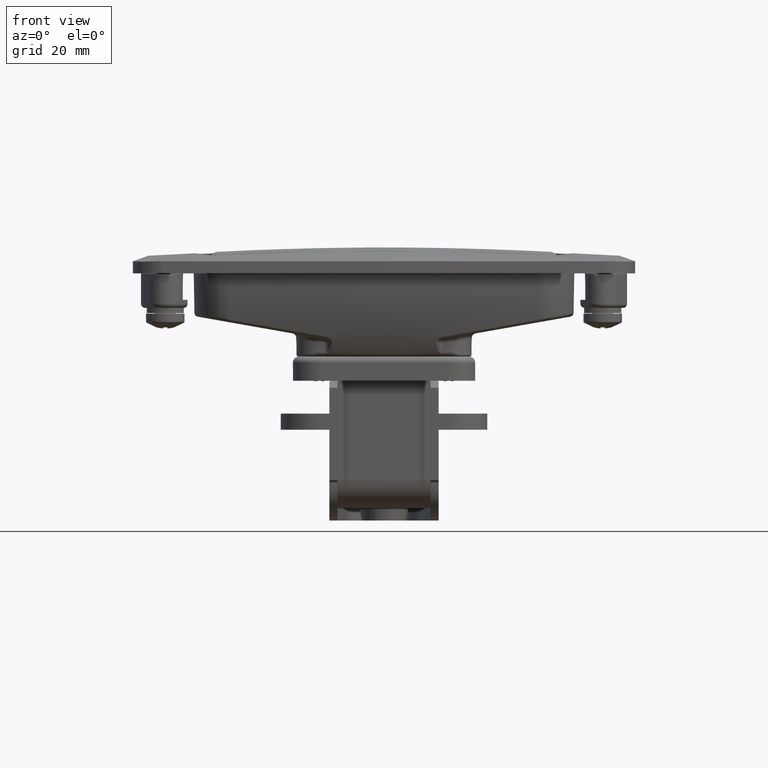
[diagram: clean part render]
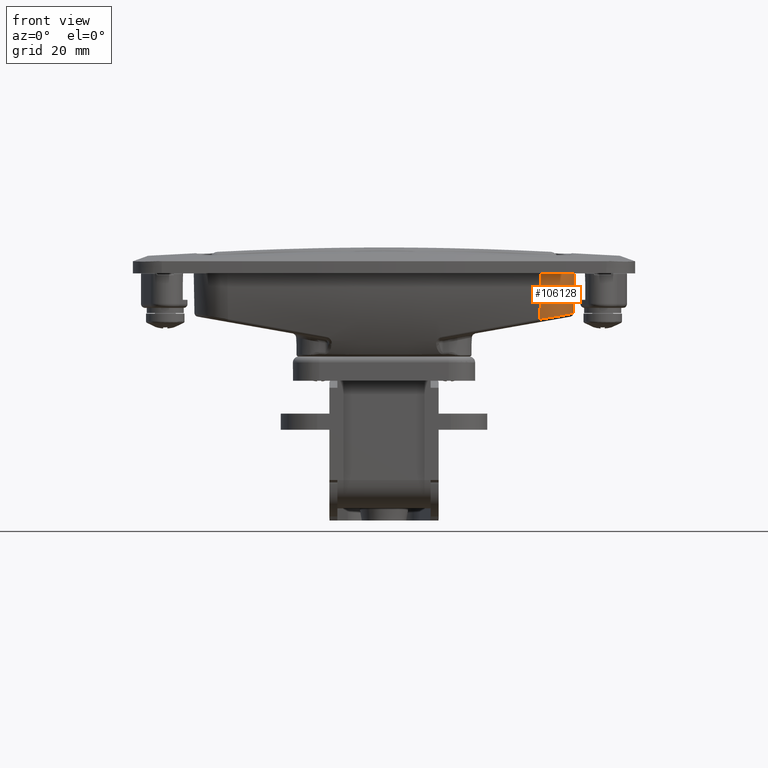
[diagram: same view with one face highlighted and labeled with its STEP entity id]
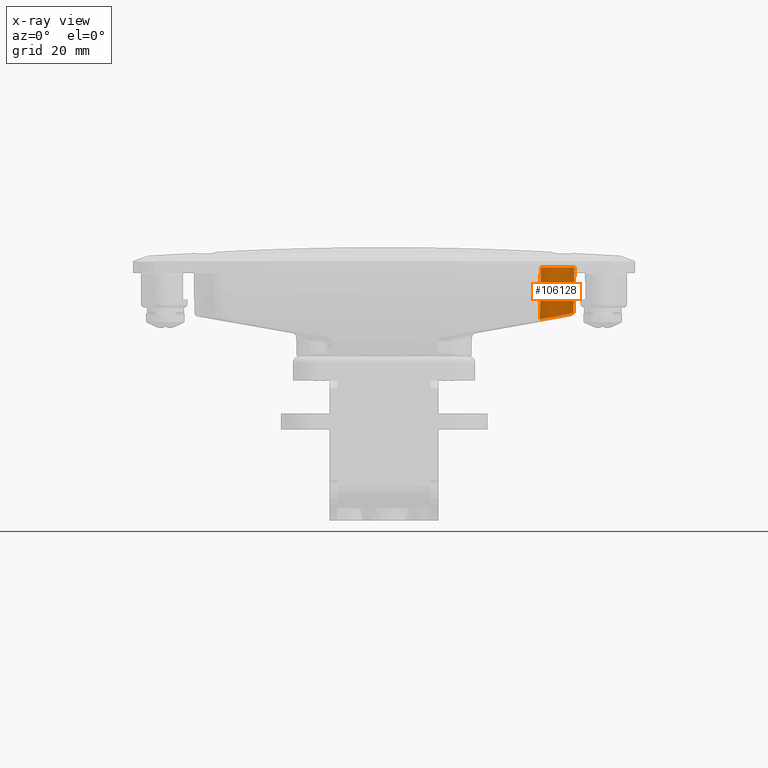
[diagram: x-ray of the same camera — body ghosted, the highlighted face saturated]
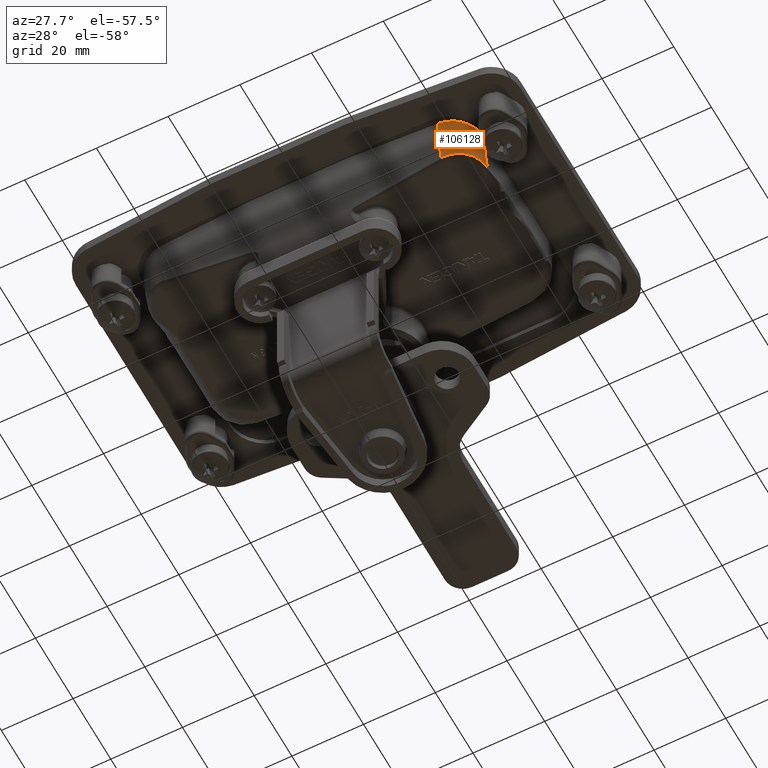
[diagram: same view with one face highlighted and labeled with its STEP entity id]
A machine part, front view. The second image highlights one B-rep face of the part: STEP entity #106128.
The next image is the same camera in x-ray: the body ghosted, the highlighted face saturated — about 0% of this face is hidden behind the body in this view.
A second angle (auxiliary view) of the same face is appended — the face is thin or edge-on in the first view.
In plain terms, the highlighted face is a freeform B-spline surface patch.
Its self-contained STEP definition (entity closure, byte-faithful):
#952 = CARTESIAN_POINT ( 'NONE',  ( 46.80427920603724300, -19.53849329007858100, -16.21283677646810200 ) ) ;
#1124 = CARTESIAN_POINT ( 'NONE',  ( 46.80427920603724300, -19.53849329007858100, -16.21283677646810200 ) ) ;
#1125 = CARTESIAN_POINT ( 'NONE',  ( 46.83577448728137700, -20.15245770582349700, -14.40847332244135800 ) ) ;
#1126 = CARTESIAN_POINT ( 'NONE',  ( 46.86790790940372600, -20.62369326632786900, -12.56755080198806600 ) ) ;
#1127 = CARTESIAN_POINT ( 'NONE',  ( 46.91706544825221700, -21.11640985572202200, -9.751317287494842400 ) ) ;
#1128 = CARTESIAN_POINT ( 'NONE',  ( 46.93360472675657700, -21.24452703973435800, -8.803782656580065000 ) ) ;
#1129 = CARTESIAN_POINT ( 'NONE',  ( 46.96672119149018000, -21.42644999896337400, -6.906541662644882800 ) ) ;
#1130 = CARTESIAN_POINT ( 'NONE',  ( 46.98333342817916500, -21.48065035501379300, -5.954827260132368800 ) ) ;
#1131 = CARTESIAN_POINT ( 'NONE',  ( 47.00000000000000000, -21.49786440300175600, -5.000000000000001800 ) ) ;
#1134 = B_SPLINE_CURVE_WITH_KNOTS ( 'NONE', 3,
 ( #1131, #1130, #1129, #1128, #1127, #1126, #1125, #1124 ),
 .UNSPECIFIED., .F., .F.,
 ( 4, 2, 2, 4 ),
 ( 6.071532165918825600E-018, 0.002859153762661309700, 0.005718307525322613300, 0.01143661505064522000 ),
 .UNSPECIFIED. ) ;
#36637 = CARTESIAN_POINT ( 'NONE',  ( 38.71252860935775400, -30.46836144080994300, -5.000000000000004400 ) ) ;
#36638 = CARTESIAN_POINT ( 'NONE',  ( 38.69670877486108700, -30.44894715861305200, -6.085526631943805500 ) ) ;
#36639 = CARTESIAN_POINT ( 'NONE',  ( 38.68038871578105600, -30.39111565488466100, -7.167812527068107000 ) ) ;
#36640 = CARTESIAN_POINT ( 'NONE',  ( 38.64675647886353000, -30.19910690925228600, -9.325944099561089800 ) ) ;
#36641 = CARTESIAN_POINT ( 'NONE',  ( 38.62942380914731900, -30.06472467854427000, -10.40301739346947800 ) ) ;
#36642 = CARTESIAN_POINT ( 'NONE',  ( 38.57606233431658900, -29.54744841967365300, -13.61619124800159100 ) ) ;
#36643 = CARTESIAN_POINT ( 'NONE',  ( 38.53887640690266600, -29.05324697571395000, -15.72272506682025500 ) ) ;
#36644 = CARTESIAN_POINT ( 'NONE',  ( 38.50006349494729100, -28.40990928892998100, -17.79372755901094600 ) ) ;
#36646 = B_SPLINE_CURVE_WITH_KNOTS ( 'NONE', 3,
 ( #36644, #36643, #36642, #36641, #36640, #36639, #36638, #36637 ),
 .UNSPECIFIED., .F., .F.,
 ( 4, 2, 2, 4 ),
 ( 0.0007406302491199893300, 0.007232738792700258600, 0.01047879306449039600, 0.01372484733628053300 ),
 .UNSPECIFIED. ) ;
#36651 = CARTESIAN_POINT ( 'NONE',  ( 38.50006349494729100, -28.40990928892998100, -17.79372755901094600 ) ) ;
#38439 = CARTESIAN_POINT ( 'NONE',  ( 41.29610914648736800, -28.96380937059325300, -13.17287625874337400 ) ) ;
#38440 = CARTESIAN_POINT ( 'NONE',  ( 40.77038661418898600, -29.15777975607797500, -13.20279279635581900 ) ) ;
#38441 = CARTESIAN_POINT ( 'NONE',  ( 40.23105644602041800, -29.30240046829325000, -13.22252544599317600 ) ) ;
#38442 = CARTESIAN_POINT ( 'NONE',  ( 39.69172627785184900, -29.44702118050852500, -13.24225809563053100 ) ) ;
#38443 = CARTESIAN_POINT ( 'NONE',  ( 39.13881006633188500, -29.54228642945342300, -13.25180606724402600 ) ) ;
#38444 = FACE_OUTER_BOUND ( 'NONE', #106129, .T. ) ;
#39086 = CARTESIAN_POINT ( 'NONE',  ( 45.20180084106983300, -25.93277783256353800, -12.63016204492076800 ) ) ;
#39087 = CARTESIAN_POINT ( 'NONE',  ( 44.85990023063207800, -26.37022807166687200, -12.71236039361271300 ) ) ;
#39088 = CARTESIAN_POINT ( 'NONE',  ( 44.47976324972653100, -26.77299803343673200, -12.78690153154691200 ) ) ;
#39089 = CARTESIAN_POINT ( 'NONE',  ( 44.09962626882098400, -27.17576799520659100, -12.86144266948111300 ) ) ;
#39090 = CARTESIAN_POINT ( 'NONE',  ( 43.68126813653981300, -27.54384155444011000, -12.92832361224224200 ) ) ;
#39091 = CARTESIAN_POINT ( 'NONE',  ( 43.23190670927115800, -27.87086840896539300, -12.98639045544759300 ) ) ;
#39092 = CARTESIAN_POINT ( 'NONE',  ( 42.78254528200249500, -28.19789526349067500, -13.04445729865294500 ) ) ;
#39093 = CARTESIAN_POINT ( 'NONE',  ( 42.30219855029474700, -28.48386232053787000, -13.09370771746780600 ) ) ;
#39094 = CARTESIAN_POINT ( 'NONE',  ( 41.79915384839105700, -28.72383584556556000, -13.13329198810559000 ) ) ;
#39119 = B_SPLINE_SURFACE_WITH_KNOTS ( 'NONE', 3, 3, ( 
 ( #39166, #39165, #39164, #39163, #39162, #39161, #39160, #39159, #39158, #39157, #39156, #39155, #39154, #39153, #39152, #39151, #39150, #39149, #39148, #39147, #39146, #39145, #39144, #39143, #39142 ),
 ( #39141, #39140, #39139, #39138, #39137, #39136, #39135, #39134, #39133, #39132, #39131, #39130, #39129, #39218, #39217, #39216, #39215, #39214, #39213, #39212, #39211, #39210, #39209, #39208, #39207 ),
 ( #39206, #39205, #39204, #39203, #39202, #39201, #39200, #39199, #39198, #39197, #39196, #39195, #39194, #39193, #39192, #39191, #39190, #39189, #39188, #39187, #39186, #39185, #39184, #39183, #39182 ),
 ( #39181, #39180, #39179, #39178, #39177, #39176, #39175, #39174, #39173, #39172, #39171, #39266, #39265, #39264, #39263, #39262, #39261, #39260, #39259, #39258, #39257, #39256, #39255, #39254, #39253 ),
 ( #39252, #39251, #39250, #39249, #39248, #39247, #39246, #39245, #39244, #39243, #39242, #39241, #39240, #39239, #39238, #39237, #39236, #39235, #39234, #39233, #39232, #39231, #39230, #39229, #39228 ),
 ( #39227, #39226, #39225, #39224, #39223, #39222, #39221, #39220, #39219, #39315, #39314, #39313, #39312, #39311, #39310, #39309, #39308, #39307, #39306, #39305, #39304, #39303, #39302, #39301, #39300 ),
 ( #39299, #39298, #39297, #39296, #39295, #39294, #39293, #39292, #39291, #39290, #39289, #39288, #39287, #39286, #39285, #39284, #39283, #39282, #39281, #39280, #39279, #39278, #39277, #39276, #39275 ),
 ( #39274, #39273, #39272, #39271, #39270, #39269, #39267, #39364, #39363, #39362, #39361, #39360, #39359, #39358, #39357, #39356, #39355, #39354, #39353, #39352, #39351, #39350, #39349, #39348, #39347 ),
 ( #39346, #39345, #39344, #39343, #39342, #39341, #39340, #39339, #39338, #39337, #39336, #39335, #39334, #39333, #39332, #39331, #39330, #39328, #39327, #39326, #39325, #39324, #39323, #39322, #39321 ),
 ( #39320, #39319, #39318, #39317, #39316, #39411, #39410, #39409, #39408, #39407, #39406, #39405, #39404, #39403, #39402, #39401, #39400, #39399, #39398, #39397, #39396, #39395, #39394, #39393, #39392 ),
 ( #39391, #39390, #39389, #39388, #39387, #39386, #39385, #39384, #39383, #39382, #39381, #39380, #39379, #39378, #39377, #39376, #39375, #39374, #39373, #39372, #39371, #39370, #39369, #39368, #39367 ),
 ( #39366, #39365, #39460, #39459, #39458, #39457, #39456, #39455, #39454, #39453, #39452, #39451, #39450, #39449, #39448, #39447, #39446, #39445, #39444, #39443, #39442, #39441, #39440, #39439, #39438 ),
 ( #39437, #39436, #39435, #39434, #39433, #39432, #39431, #39430, #39429, #39428, #39427, #39426, #39425, #39424, #39423, #39422, #39421, #39420, #39419, #39418, #39417, #39416, #39415, #39414, #39413 ),
 ( #39412, #38443, #38442, #38441, #38440, #38439, #39094, #39093, #39092, #39091, #39090, #39089, #39088, #39087, #39086, #39508, #39507, #39506, #39505, #39504, #39503, #39502, #39501, #39500, #39499 ),
 ( #39498, #39497, #39496, #39495, #39494, #39493, #39492, #39491, #39490, #39489, #39488, #39487, #39486, #39485, #39484, #39483, #39482, #39481, #39480, #39479, #39478, #39477, #39476, #39475, #39474 ),
 ( #39473, #39472, #39471, #39470, #39469, #39468, #39467, #39466, #39465, #39464, #39463, #39462, #39461, #39556, #39555, #39554, #39553, #39552, #39551, #39550, #39549, #39548, #39547, #39546, #39545 ),
 ( #39544, #39543, #39542, #39541, #39540, #39539, #39538, #39537, #39536, #39535, #39534, #39533, #39532, #39531, #39530, #39529, #39528, #39527, #39526, #39525, #39524, #39523, #39522, #39521, #39520 ),
 ( #39519, #39518, #39517, #39516, #39515, #39514, #39513, #39512, #39511, #39510, #39509, #39602, #39601, #39600, #39599, #39598, #39597, #39596, #39595, #39594, #39593, #39592, #39591, #39590, #39589 ),
 ( #39588, #39587, #39586, #39585, #39584, #39583, #39582, #39581, #39580, #39579, #39578, #39577, #39576, #39575, #39574, #39573, #39572, #39571, #39570, #39569, #39568, #39567, #39566, #39565, #39564 ) ),
 .UNSPECIFIED., .F., .F., .F.,
 ( 4, 3, 3, 3, 3, 3, 4 ),
 ( 4, 3, 3, 3, 3, 3, 3, 3, 4 ),
 ( 0.01982776705656933600, 0.02271980293831549500, 0.02416582087918857400, 0.02488882984962511500, 0.02561183882006165500, 0.02850387470180781500, 0.03139591058355397500 ),
 ( 0.0000000000000000000, 0.1250000000000000000, 0.2500000000000000000, 0.3750000000000000000, 0.5000000000000000000, 0.6250000000000000000, 0.7500000000000000000, 0.8750000000000000000, 1.000000000000000000 ),
 .UNSPECIFIED. ) ;
#39129 = CARTESIAN_POINT ( 'NONE',  ( 44.59399504436684900, -27.58819630303151600, -6.042895424150334100 ) ) ;
#39130 = CARTESIAN_POINT ( 'NONE',  ( 44.21445796160738700, -27.99881799745543600, -6.052990495590466800 ) ) ;
#39131 = CARTESIAN_POINT ( 'NONE',  ( 43.79656417740940800, -28.37399904313321700, -6.060972347964416000 ) ) ;
#39132 = CARTESIAN_POINT ( 'NONE',  ( 43.34753453485404200, -28.70725663733323800, -6.066702973279174000 ) ) ;
#39133 = CARTESIAN_POINT ( 'NONE',  ( 42.89850489229867500, -29.04051423153326200, -6.072433598593931100 ) ) ;
#39134 = CARTESIAN_POINT ( 'NONE',  ( 42.41835742377351400, -29.33183499111054700, -6.075912766348618100 ) ) ;
#39135 = CARTESIAN_POINT ( 'NONE',  ( 41.91538866174421700, -29.57618514574795300, -6.077080290822897800 ) ) ;
#39136 = CARTESIAN_POINT ( 'NONE',  ( 41.41241989971492600, -29.82053530038535900, -6.078247815297178400 ) ) ;
#39137 = CARTESIAN_POINT ( 'NONE',  ( 40.88665004268524700, -30.01790503732981500, -6.077103649335724000 ) ) ;
#39138 = CARTESIAN_POINT ( 'NONE',  ( 40.34716393819405100, -30.16488397781551700, -6.073667516584787800 ) ) ;
#39139 = CARTESIAN_POINT ( 'NONE',  ( 39.80767783370284700, -30.31186291830122000, -6.070231383833850600 ) ) ;
#39140 = CARTESIAN_POINT ( 'NONE',  ( 39.25449714673687400, -30.40844515985988400, -6.064503422121686200 ) ) ;
#39141 = CARTESIAN_POINT ( 'NONE',  ( 38.69718036004272900, -30.45296184359554200, -6.056582582893640600 ) ) ;
#39142 = CARTESIAN_POINT ( 'NONE',  ( 47.00223722259141800, -21.49995230894228700, -4.871829603578167000 ) ) ;
#39143 = CARTESIAN_POINT ( 'NONE',  ( 47.00209521870409200, -22.05918645700340600, -4.879965000834572700 ) ) ;
#39144 = CARTESIAN_POINT ( 'NONE',  ( 46.94967586342726700, -22.61840936426672100, -4.887187729954112200 ) ) ;
#39145 = CARTESIAN_POINT ( 'NONE',  ( 46.84588539048164800, -23.16795310076109300, -4.893372923306317900 ) ) ;
#39146 = CARTESIAN_POINT ( 'NONE',  ( 46.74209491753603600, -23.71749683725546400, -4.899558116658523600 ) ) ;
#39147 = CARTESIAN_POINT ( 'NONE',  ( 46.58693749936966800, -24.25733931094654800, -4.904705525594392800 ) ) ;
#39148 = CARTESIAN_POINT ( 'NONE',  ( 46.38309552083102700, -24.77814764372187300, -4.908726160931832900 ) ) ;
#39149 = CARTESIAN_POINT ( 'NONE',  ( 46.17925354229239300, -25.29895597649719400, -4.912746796269272100 ) ) ;
#39150 = CARTESIAN_POINT ( 'NONE',  ( 45.92673519796850500, -25.80070923150539700, -4.915640496375989900 ) ) ;
#39151 = CARTESIAN_POINT ( 'NONE',  ( 45.62990606308471800, -26.27473302279179300, -4.917357234528068100 ) ) ;
#39152 = CARTESIAN_POINT ( 'NONE',  ( 45.33307692820092400, -26.74875681407819200, -4.919073972680146200 ) ) ;
#39153 = CARTESIAN_POINT ( 'NONE',  ( 44.99194893549157100, -27.19503208556204800, -4.919613679863531700 ) ) ;
#39154 = CARTESIAN_POINT ( 'NONE',  ( 44.61241955714875500, -27.60584356303580500, -4.918967025539041400 ) ) ;
#39155 = CARTESIAN_POINT ( 'NONE',  ( 44.23289017880594500, -28.01665504050955800, -4.918320371214551100 ) ) ;
#39156 = CARTESIAN_POINT ( 'NONE',  ( 43.81497467217038600, -28.39198620907073000, -4.916487381378129100 ) ) ;
#39157 = CARTESIAN_POINT ( 'NONE',  ( 43.36589802355721400, -28.72534828686409400, -4.913499745034541500 ) ) ;
#39158 = CARTESIAN_POINT ( 'NONE',  ( 42.91682137494403500, -29.05871036465745400, -4.910512108690954700 ) ) ;
#39159 = CARTESIAN_POINT ( 'NONE',  ( 42.43660163754179100, -29.35008995029934900, -4.906369945945224100 ) ) ;
#39160 = CARTESIAN_POINT ( 'NONE',  ( 41.93354092260482000, -29.59444962956284500, -4.901144867131693100 ) ) ;
#39161 = CARTESIAN_POINT ( 'NONE',  ( 41.43048020766784100, -29.83880930882634200, -4.895919788318162900 ) ) ;
#39162 = CARTESIAN_POINT ( 'NONE',  ( 40.90459873858107900, -30.03613925828513600, -4.889612003488570800 ) ) ;
#39163 = CARTESIAN_POINT ( 'NONE',  ( 40.36498803350360700, -30.18302800800866200, -4.882330562578489200 ) ) ;
#39164 = CARTESIAN_POINT ( 'NONE',  ( 39.82537732842613600, -30.32991675773219200, -4.875049121668406600 ) ) ;
#39165 = CARTESIAN_POINT ( 'NONE',  ( 39.27205908007754000, -30.42635840269220200, -4.866794317396739600 ) ) ;
#39166 = CARTESIAN_POINT ( 'NONE',  ( 38.71459913779520400, -30.47068564518382100, -4.857708860064854600 ) ) ;
#39171 = CARTESIAN_POINT ( 'NONE',  ( 43.75880612948424900, -28.20348429166300300, -8.352279989710808600 ) ) ;
#39172 = CARTESIAN_POINT ( 'NONE',  ( 43.30975618211550700, -28.53548918541772000, -8.375471673087673700 ) ) ;
#39173 = CARTESIAN_POINT ( 'NONE',  ( 42.86070623474677200, -28.86749407917243800, -8.398663356464537000 ) ) ;
#39174 = CARTESIAN_POINT ( 'NONE',  ( 42.38058547216761000, -29.15776592696758500, -8.417412238028452600 ) ) ;
#39175 = CARTESIAN_POINT ( 'NONE',  ( 41.87768378622874400, -29.40129281844001600, -8.431394594640158500 ) ) ;
#39176 = CARTESIAN_POINT ( 'NONE',  ( 41.37478210028987000, -29.64481970991244700, -8.445376951251864400 ) ) ;
#39177 = CARTESIAN_POINT ( 'NONE',  ( 40.84911965660245400, -29.84159187999528100, -8.454592222239616800 ) ) ;
#39178 = CARTESIAN_POINT ( 'NONE',  ( 40.30977268170740000, -29.98821180844703300, -8.458881294301470200 ) ) ;
#39179 = CARTESIAN_POINT ( 'NONE',  ( 39.77042570681234000, -30.13483173689878200, -8.463170366363323500 ) ) ;
#39180 = CARTESIAN_POINT ( 'NONE',  ( 39.21741582772277500, -30.23129354447794600, -8.462533067513859900 ) ) ;
#39181 = CARTESIAN_POINT ( 'NONE',  ( 38.66029145901968900, -30.27593169614649700, -8.456980401523274800 ) ) ;
#39182 = CARTESIAN_POINT ( 'NONE',  ( 46.96856065224145000, -21.43410493777382400, -6.801159026783300200 ) ) ;
#39183 = CARTESIAN_POINT ( 'NONE',  ( 46.96790834231647700, -21.99207567229047200, -6.838529837356516000 ) ) ;
#39184 = CARTESIAN_POINT ( 'NONE',  ( 46.91502843701160000, -22.55003521268046300, -6.874988261700528900 ) ) ;
#39185 = CARTESIAN_POINT ( 'NONE',  ( 46.81083427048853500, -23.09834658367878300, -6.909904514602378500 ) ) ;
#39186 = CARTESIAN_POINT ( 'NONE',  ( 46.70664010396547600, -23.64665795467709900, -6.944820767504228200 ) ) ;
#39187 = CARTESIAN_POINT ( 'NONE',  ( 46.55113585696766900, -24.18529915560672100, -6.978193447593717700 ) ) ;
#39188 = CARTESIAN_POINT ( 'NONE',  ( 46.34700737380266800, -24.70496687399854700, -7.009446068926110700 ) ) ;
#39189 = CARTESIAN_POINT ( 'NONE',  ( 46.14287889063767500, -25.22463459239037000, -7.040698690258502700 ) ) ;
#39190 = CARTESIAN_POINT ( 'NONE',  ( 45.89013436186127800, -25.72530797687715100, -7.069829998484411100 ) ) ;
#39191 = CARTESIAN_POINT ( 'NONE',  ( 45.59313914932094700, -26.19833948811345100, -7.096336769451514900 ) ) ;
#39192 = CARTESIAN_POINT ( 'NONE',  ( 45.29614393678062400, -26.67137099934974700, -7.122843540418617900 ) ) ;
#39193 = CARTESIAN_POINT ( 'NONE',  ( 44.95490995726106600, -27.11674165721880700, -7.146724710234053600 ) ) ;
#39194 = CARTESIAN_POINT ( 'NONE',  ( 44.57533094725397400, -27.52675910087349500, -7.167567742311422100 ) ) ;
#39195 = CARTESIAN_POINT ( 'NONE',  ( 44.19575193724688200, -27.93677654452818300, -7.188410774388790600 ) ) ;
#39196 = CARTESIAN_POINT ( 'NONE',  ( 43.77784312716846000, -28.31142432225430000, -7.206214832132697100 ) ) ;
#39197 = CARTESIAN_POINT ( 'NONE',  ( 43.32882256802270900, -28.64423158575725000, -7.220672352121539500 ) ) ;
#39198 = CARTESIAN_POINT ( 'NONE',  ( 42.87980200887695800, -28.97703884926020000, -7.235129872110381800 ) ) ;
#39199 = CARTESIAN_POINT ( 'NONE',  ( 42.39968771738562500, -29.26799224483907800, -7.246240274016676300 ) ) ;
#39200 = CARTESIAN_POINT ( 'NONE',  ( 41.89677214691500500, -29.51206647815259700, -7.253811618316462700 ) ) ;
#39201 = CARTESIAN_POINT ( 'NONE',  ( 41.39385657644439200, -29.75614071146611600, -7.261382962616249200 ) ) ;
#39202 = CARTESIAN_POINT ( 'NONE',  ( 40.86815990622494600, -29.95332598917433800, -7.265414945346675400 ) ) ;
#39203 = CARTESIAN_POINT ( 'NONE',  ( 40.32876188057890200, -30.10021656260977700, -7.265837897919994700 ) ) ;
#39204 = CARTESIAN_POINT ( 'NONE',  ( 39.78936385493285100, -30.24710713604521600, -7.266260850493313100 ) ) ;
#39205 = CARTESIAN_POINT ( 'NONE',  ( 39.23628611692958400, -30.34369711130554100, -7.263074755838351500 ) ) ;
#39206 = CARTESIAN_POINT ( 'NONE',  ( 38.67908133190379500, -30.38831820328949000, -7.256334629455022200 ) ) ;
#39207 = CARTESIAN_POINT ( 'NONE',  ( 46.98540510322424500, -21.48591981975507200, -5.836141076288279300 ) ) ;
#39208 = CARTESIAN_POINT ( 'NONE',  ( 46.98500796075057900, -22.04479465939157700, -5.858893353366239500 ) ) ;
#39209 = CARTESIAN_POINT ( 'NONE',  ( 46.93236095437496400, -22.60365827722759500, -5.880733148380761200 ) ) ;
#39210 = CARTESIAN_POINT ( 'NONE',  ( 46.82837378090097500, -23.15285399638374700, -5.901282956777514200 ) ) ;
#39211 = CARTESIAN_POINT ( 'NONE',  ( 46.72438660742698600, -23.70204971553990000, -5.921832765174265500 ) ) ;
#39212 = CARTESIAN_POINT ( 'NONE',  ( 46.56906344283935800, -24.24155548111448500, -5.941091761097359500 ) ) ;
#39213 = CARTESIAN_POINT ( 'NONE',  ( 46.36508813862295100, -24.76204910297450100, -5.958727038526509600 ) ) ;
#39214 = CARTESIAN_POINT ( 'NONE',  ( 46.16111283440654500, -25.28254272483451700, -5.976362315955659800 ) ) ;
#39215 = CARTESIAN_POINT ( 'NONE',  ( 45.90849358192406300, -25.78400330071220700, -5.992373166109960200 ) ) ;
#39216 = CARTESIAN_POINT ( 'NONE',  ( 45.61159542435170500, -26.25776602806146400, -6.006482817084930500 ) ) ;
#39217 = CARTESIAN_POINT ( 'NONE',  ( 45.31469726677934800, -26.73152875541072100, -6.020592468059900800 ) ) ;
#39218 = CARTESIAN_POINT ( 'NONE',  ( 44.97353212712630500, -27.17757460860759300, -6.032800352710201400 ) ) ;
#39219 = CARTESIAN_POINT ( 'NONE',  ( 42.84151210487851800, -28.74641854961774700, -9.562406409426433400 ) ) ;
#39220 = CARTESIAN_POINT ( 'NONE',  ( 42.36137494601906200, -29.03593021876652400, -9.588795582768568700 ) ) ;
#39221 = CARTESIAN_POINT ( 'NONE',  ( 41.85847730494688800, -29.27884184357398900, -9.609190749853524900 ) ) ;
#39222 = CARTESIAN_POINT ( 'NONE',  ( 41.35557966387470700, -29.52175346838145100, -9.629585916938481200 ) ) ;
#39223 = CARTESIAN_POINT ( 'NONE',  ( 40.82994169399740500, -29.71805531427197900, -9.643986260410127200 ) ) ;
#39224 = CARTESIAN_POINT ( 'NONE',  ( 40.29063650100187700, -29.86435899004751700, -9.652143209107270700 ) ) ;
#39225 = CARTESIAN_POINT ( 'NONE',  ( 39.75133130800635000, -30.01066266582305200, -9.660300157804412500 ) ) ;
#39226 = CARTESIAN_POINT ( 'NONE',  ( 39.19838050431706500, -30.10696230842850700, -9.662213384823605400 ) ) ;
#39227 = CARTESIAN_POINT ( 'NONE',  ( 38.64132864597846200, -30.15159567740261100, -9.657849863266847000 ) ) ;
#39228 = CARTESIAN_POINT ( 'NONE',  ( 46.94327515398379800, -21.29871523050293200, -8.249764251778691100 ) ) ;
#39229 = CARTESIAN_POINT ( 'NONE',  ( 46.94223989200354900, -21.85449899432864000, -8.309074370904793800 ) ) ;
#39230 = CARTESIAN_POINT ( 'NONE',  ( 46.88900250110806700, -22.41027161871612000, -8.367472109332871000 ) ) ;
#39231 = CARTESIAN_POINT ( 'NONE',  ( 46.78448204426703000, -22.95643853605724500, -8.423949298508880200 ) ) ;
#39232 = CARTESIAN_POINT ( 'NONE',  ( 46.67996158742599300, -23.50260545339837400, -8.480426487684889400 ) ) ;
#39233 = CARTESIAN_POINT ( 'NONE',  ( 46.52416225439859000, -24.03914477031288400, -8.534980863597521500 ) ) ;
#39234 = CARTESIAN_POINT ( 'NONE',  ( 46.31977368414288800, -24.55679395293443800, -8.586670608208063300 ) ) ;
#39235 = CARTESIAN_POINT ( 'NONE',  ( 46.11538511388719300, -25.07444313555598800, -8.638360352818605000 ) ) ;
#39236 = CARTESIAN_POINT ( 'NONE',  ( 45.86241549942820200, -25.57318143365224500, -8.687183394027854900 ) ) ;
#39237 = CARTESIAN_POINT ( 'NONE',  ( 45.56523197687823800, -26.04439889033794100, -8.732296857962319700 ) ) ;
#39238 = CARTESIAN_POINT ( 'NONE',  ( 45.26804845432826600, -26.51561634702364100, -8.777410321896784500 ) ) ;
#39239 = CARTESIAN_POINT ( 'NONE',  ( 44.92666293644669700, -26.95929407330583100, -8.818812400078869000 ) ) ;
#39240 = CARTESIAN_POINT ( 'NONE',  ( 44.54696892546626700, -27.36777264915999900, -8.855788332297043700 ) ) ;
#39241 = CARTESIAN_POINT ( 'NONE',  ( 44.16727491448583700, -27.77625122501416400, -8.892764264515220100 ) ) ;
#39242 = CARTESIAN_POINT ( 'NONE',  ( 43.74928763064214400, -28.14951427636735200, -8.925312568499864000 ) ) ;
#39243 = CARTESIAN_POINT ( 'NONE',  ( 43.30022298916190200, -28.48111798524795200, -8.952871333570739100 ) ) ;
#39244 = CARTESIAN_POINT ( 'NONE',  ( 42.85115834768166800, -28.81272169412855200, -8.980430098641615900 ) ) ;
#39245 = CARTESIAN_POINT ( 'NONE',  ( 42.37103434955859900, -29.10265276803183800, -9.002998220034339000 ) ) ;
#39246 = CARTESIAN_POINT ( 'NONE',  ( 41.86813960588560200, -29.34590598858372700, -9.020186082802006000 ) ) ;
#39247 = CARTESIAN_POINT ( 'NONE',  ( 41.36524486221260600, -29.58915920913561600, -9.037373945569672900 ) ) ;
#39248 = CARTESIAN_POINT ( 'NONE',  ( 40.83959953179121500, -29.78572482540575500, -9.049180860686085700 ) ) ;
#39249 = CARTESIAN_POINT ( 'NONE',  ( 40.30027808227165300, -29.93220943136566000, -9.055402992492206600 ) ) ;
#39250 = CARTESIAN_POINT ( 'NONE',  ( 39.76095663275208400, -30.07869403732556500, -9.061625124298329200 ) ) ;
#39251 = CARTESIAN_POINT ( 'NONE',  ( 39.20798068311937400, -30.17509176106414500, -9.062262223351613200 ) ) ;
#39252 = CARTESIAN_POINT ( 'NONE',  ( 38.65089652257763900, -30.21973844257500000, -9.057303287557399300 ) ) ;
#39253 = CARTESIAN_POINT ( 'NONE',  ( 46.95170365340301500, -21.34384513292656400, -7.766895843446895300 ) ) ;
#39254 = CARTESIAN_POINT ( 'NONE',  ( 46.95079604210786100, -21.90035788698258300, -7.818892859722035700 ) ) ;
#39255 = CARTESIAN_POINT ( 'NONE',  ( 46.89767781307590900, -22.45685948337090200, -7.869977493455424500 ) ) ;
#39256 = CARTESIAN_POINT ( 'NONE',  ( 46.79326611967420000, -23.00374121859776000, -7.919267703873380500 ) ) ;
#39257 = CARTESIAN_POINT ( 'NONE',  ( 46.68885442627249200, -23.55062295382461800, -7.968557914291336500 ) ) ;
#39258 = CARTESIAN_POINT ( 'NONE',  ( 46.53315345525494700, -24.08786289874416300, -8.016051724929585700 ) ) ;
#39259 = CARTESIAN_POINT ( 'NONE',  ( 46.32885158069614600, -24.60618492662247200, -8.060929095114080000 ) ) ;
#39260 = CARTESIAN_POINT ( 'NONE',  ( 46.12454970613735100, -25.12450695450078100, -8.105806465298572400 ) ) ;
#39261 = CARTESIAN_POINT ( 'NONE',  ( 45.87165512023922500, -25.62389028139388000, -8.148065595513374500 ) ) ;
#39262 = CARTESIAN_POINT ( 'NONE',  ( 45.57453436769247200, -26.09571242292977900, -8.186976828458718100 ) ) ;
#39263 = CARTESIAN_POINT ( 'NONE',  ( 45.27741361514571800, -26.56753456446567400, -8.225888061404063500 ) ) ;
#39264 = CARTESIAN_POINT ( 'NONE',  ( 44.93607861005148900, -27.01177660127682500, -8.261449836797263300 ) ) ;
#39265 = CARTESIAN_POINT ( 'NONE',  ( 44.55642293272883600, -27.42076813306449900, -8.293048135635171300 ) ) ;
#39266 = CARTESIAN_POINT ( 'NONE',  ( 44.17676725540619000, -27.82975966485217300, -8.324646434473077500 ) ) ;
#39267 = CARTESIAN_POINT ( 'NONE',  ( 41.84380374225425900, -29.16045074491174600, -10.49303060192679000 ) ) ;
#39269 = CARTESIAN_POINT ( 'NONE',  ( 41.34088677121531000, -29.40274648357771500, -10.51823865840813700 ) ) ;
#39270 = CARTESIAN_POINT ( 'NONE',  ( 40.81524499311911600, -29.59856550433514100, -10.53653079028767600 ) ) ;
#39271 = CARTESIAN_POINT ( 'NONE',  ( 40.27595007484125500, -29.74452831012481400, -10.54759130580659300 ) ) ;
#39272 = CARTESIAN_POINT ( 'NONE',  ( 39.73665515656339400, -29.89049111591448900, -10.55865182132551200 ) ) ;
#39273 = CARTESIAN_POINT ( 'NONE',  ( 39.18372870291853600, -29.98659185928823200, -10.56248027738171300 ) ) ;
#39274 = CARTESIAN_POINT ( 'NONE',  ( 38.62671326702636800, -30.03117200788932100, -10.55901060084402400 ) ) ;
#39275 = CARTESIAN_POINT ( 'NONE',  ( 46.92640868339662300, -21.17943527589715200, -9.216043704564640400 ) ) ;
#39276 = CARTESIAN_POINT ( 'NONE',  ( 46.92511800547188700, -21.73334291371891800, -9.289986593350329600 ) ) ;
#39277 = CARTESIAN_POINT ( 'NONE',  ( 46.87163818218894600, -22.28723945519945800, -9.363017035478112100 ) ) ;
#39278 = CARTESIAN_POINT ( 'NONE',  ( 46.76689223371555200, -22.83156507670330300, -9.433874582300131100 ) ) ;
#39279 = CARTESIAN_POINT ( 'NONE',  ( 46.66214628524215900, -23.37589069820714400, -9.504732129122151800 ) ) ;
#39280 = CARTESIAN_POINT ( 'NONE',  ( 46.50613840829527800, -23.91062359096176600, -9.573413941683087500 ) ) ;
#39281 = CARTESIAN_POINT ( 'NONE',  ( 46.30156117753039500, -24.42653468100842300, -9.638734625300220000 ) ) ;
#39282 = CARTESIAN_POINT ( 'NONE',  ( 46.09698394676551200, -24.94244577105508000, -9.704055308917350700 ) ) ;
#39283 = CARTESIAN_POINT ( 'NONE',  ( 45.84384555870711600, -25.43951438806858800, -9.766012246473513500 ) ) ;
#39284 = CARTESIAN_POINT ( 'NONE',  ( 45.54651498511072600, -25.90916151420442400, -9.823536109399782400 ) ) ;
#39285 = CARTESIAN_POINT ( 'NONE',  ( 45.24918441151433500, -26.37880864034026400, -9.881059972326051300 ) ) ;
#39286 = CARTESIAN_POINT ( 'NONE',  ( 44.90767356512957800, -26.82101545887011400, -9.934148455890129600 ) ) ;
#39287 = CARTESIAN_POINT ( 'NONE',  ( 44.52787665763055000, -27.22814982393466800, -9.981885294143525700 ) ) ;
#39288 = CARTESIAN_POINT ( 'NONE',  ( 44.14807975013152200, -27.63528418899921800, -10.02962213239692000 ) ) ;
#39289 = CARTESIAN_POINT ( 'NONE',  ( 43.73001199833704100, -28.00732978848600800, -10.07200541273106400 ) ) ;
#39290 = CARTESIAN_POINT ( 'NONE',  ( 43.28088892658338000, -28.33786540462404700, -10.10830363268161100 ) ) ;
#39291 = CARTESIAN_POINT ( 'NONE',  ( 42.83176585482971900, -28.66840102076208700, -10.14460185263215700 ) ) ;
#39292 = CARTESIAN_POINT ( 'NONE',  ( 42.35160545753515700, -28.95741341041935600, -10.17481355788648200 ) ) ;
#39293 = CARTESIAN_POINT ( 'NONE',  ( 41.84869492981846400, -29.19991444446582600, -10.19841731790236700 ) ) ;
#39294 = CARTESIAN_POINT ( 'NONE',  ( 41.34578440210177100, -29.44241547851229500, -10.22202107791825100 ) ) ;
#39295 = CARTESIAN_POINT ( 'NONE',  ( 40.82014389341187400, -29.63839544098075500, -10.23901594699515800 ) ) ;
#39296 = CARTESIAN_POINT ( 'NONE',  ( 40.28084555022812900, -29.78447187009904700, -10.24910860690681800 ) ) ;
#39297 = CARTESIAN_POINT ( 'NONE',  ( 39.74154720704438400, -29.93054829921734200, -10.25920126681847800 ) ) ;
#39298 = CARTESIAN_POINT ( 'NONE',  ( 39.18861263671804100, -30.02671534233498800, -10.26239131319567700 ) ) ;
#39299 = CARTESIAN_POINT ( 'NONE',  ( 38.63158506001039400, -30.07131323106041500, -10.25862368831829800 ) ) ;
#39300 = CARTESIAN_POINT ( 'NONE',  ( 46.93484351397417200, -21.24396298626637900, -8.732812584414560300 ) ) ;
#39301 = CARTESIAN_POINT ( 'NONE',  ( 46.93368056773956500, -21.79887911886743600, -8.799437729574327300 ) ) ;
#39302 = CARTESIAN_POINT ( 'NONE',  ( 46.88032265687021300, -22.35378413245988200, -8.865150472811087900 ) ) ;
#39303 = CARTESIAN_POINT ( 'NONE',  ( 46.77569079947044600, -22.89909974102014400, -8.928816523913674500 ) ) ;
#39304 = CARTESIAN_POINT ( 'NONE',  ( 46.67105894207067300, -23.44441534958040700, -8.992482575016259400 ) ) ;
#39305 = CARTESIAN_POINT ( 'NONE',  ( 46.51515733121836100, -23.98011969982797000, -9.054099382530965900 ) ) ;
#39306 = CARTESIAN_POINT ( 'NONE',  ( 46.31067700519253100, -24.49696593082755700, -9.112603357210519000 ) ) ;
#39307 = CARTESIAN_POINT ( 'NONE',  ( 46.10619667916670000, -25.01381216182714300, -9.171107331890070200 ) ) ;
#39308 = CARTESIAN_POINT ( 'NONE',  ( 45.85314583242966100, -25.51177956119585100, -9.226496129152101500 ) ) ;
#39309 = CARTESIAN_POINT ( 'NONE',  ( 45.55589240887961500, -25.98227265029984800, -9.277813663196221600 ) ) ;
#39310 = CARTESIAN_POINT ( 'NONE',  ( 45.25863898532956100, -26.45276573940384800, -9.329131197240341700 ) ) ;
#39311 = CARTESIAN_POINT ( 'NONE',  ( 44.91719489727077500, -26.89576566344174000, -9.376375411483145700 ) ) ;
#39312 = CARTESIAN_POINT ( 'NONE',  ( 44.53745385585040900, -27.30362574435221400, -9.418730806217265400 ) ) ;
#39313 = CARTESIAN_POINT ( 'NONE',  ( 44.15771281443004900, -27.71148582526268500, -9.461086200951385200 ) ) ;
#39314 = CARTESIAN_POINT ( 'NONE',  ( 43.73969003760810600, -28.08418971823424200, -9.498551078754642800 ) ) ;
#39315 = CARTESIAN_POINT ( 'NONE',  ( 43.29060107124331600, -28.41530413392599300, -9.530478744090537200 ) ) ;
#39316 = CARTESIAN_POINT ( 'NONE',  ( 40.80534272083946200, -29.50988898440500600, -11.13167602175791300 ) ) ;
#39317 = CARTESIAN_POINT ( 'NONE',  ( 40.26604757290203200, -29.65558971772501100, -11.14467263328725400 ) ) ;
#39318 = CARTESIAN_POINT ( 'NONE',  ( 39.72675242496460200, -29.80129045104501600, -11.15766924481659400 ) ) ;
#39319 = CARTESIAN_POINT ( 'NONE',  ( 39.17383549653502000, -29.89723264177619200, -11.16277478951886900 ) ) ;
#39320 = CARTESIAN_POINT ( 'NONE',  ( 38.61683830499490000, -29.94176064504058100, -11.15990116257938800 ) ) ;
#39321 = CARTESIAN_POINT ( 'NONE',  ( 46.91797000746991800, -21.11243578641037600, -9.699495124619799600 ) ) ;
#39322 = CARTESIAN_POINT ( 'NONE',  ( 46.91655153983702300, -21.66529928213613200, -9.780759080882564400 ) ) ;
#39323 = CARTESIAN_POINT ( 'NONE',  ( 46.86294941131974700, -22.21815170475681700, -9.861110539847425500 ) ) ;
#39324 = CARTESIAN_POINT ( 'NONE',  ( 46.75808865662801100, -22.76145224596713500, -9.939162839633738100 ) ) ;
#39325 = CARTESIAN_POINT ( 'NONE',  ( 46.65322790193627600, -23.30475278717744900, -10.01721513942005300 ) ) ;
#39326 = CARTESIAN_POINT ( 'NONE',  ( 46.49711272150770500, -23.83847968383324200, -10.09296515345213400 ) ) ;
#39327 = CARTESIAN_POINT ( 'NONE',  ( 46.29243726126075800, -24.35342218492691300, -10.16510562902846200 ) ) ;
#39328 = CARTESIAN_POINT ( 'NONE',  ( 46.08776180101381200, -24.86836468602058400, -10.23724610460479000 ) ) ;
#39330 = CARTESIAN_POINT ( 'NONE',  ( 45.83453425969246800, -25.36450216435404300, -10.30577415196195900 ) ) ;
#39331 = CARTESIAN_POINT ( 'NONE',  ( 45.53712469240715400, -25.83327256542390400, -10.36950715112193100 ) ) ;
#39332 = CARTESIAN_POINT ( 'NONE',  ( 45.23971512512183300, -26.30204296649376200, -10.43324015028190400 ) ) ;
#39333 = CARTESIAN_POINT ( 'NONE',  ( 44.89813544529328500, -26.74342751263084500, -10.49217554826301500 ) ) ;
#39334 = CARTESIAN_POINT ( 'NONE',  ( 44.51828043834999000, -27.14980904386050800, -10.54529626977051000 ) ) ;
#39335 = CARTESIAN_POINT ( 'NONE',  ( 44.13842543140668800, -27.55619057509016700, -10.59841699127800800 ) ) ;
#39336 = CARTESIAN_POINT ( 'NONE',  ( 43.72031031331006500, -27.92755281287192300, -10.64572090843069100 ) ) ;
#39337 = CARTESIAN_POINT ( 'NONE',  ( 43.27115067399847700, -28.25748700184814100, -10.68639167566999300 ) ) ;
#39338 = CARTESIAN_POINT ( 'NONE',  ( 42.82199103468688900, -28.58742119082435800, -10.72706244290929700 ) ) ;
#39339 = CARTESIAN_POINT ( 'NONE',  ( 42.34180486627731500, -28.87591411472745100, -10.76109843106714900 ) ) ;
#39340 = CARTESIAN_POINT ( 'NONE',  ( 41.83887894514043600, -29.11798712902962900, -10.78791226526336000 ) ) ;
#39341 = CARTESIAN_POINT ( 'NONE',  ( 41.33595302400355100, -29.36006014333180800, -10.81472609945957200 ) ) ;
#39342 = CARTESIAN_POINT ( 'NONE',  ( 40.81030749598770800, -29.55570355124551100, -10.83431670559920500 ) ) ;
#39343 = CARTESIAN_POINT ( 'NONE',  ( 40.27101364890428700, -29.70154105164566600, -10.84634599933496600 ) ) ;
#39344 = CARTESIAN_POINT ( 'NONE',  ( 39.73171980182086600, -29.84737855204581800, -10.85837529307072600 ) ) ;
#39345 = CARTESIAN_POINT ( 'NONE',  ( 39.17879923831866100, -29.94340430307818200, -10.86284279253843200 ) ) ;
#39346 = CARTESIAN_POINT ( 'NONE',  ( 38.62179394305675100, -29.98796114769314900, -10.85967139973823600 ) ) ;
#39347 = CARTESIAN_POINT ( 'NONE',  ( 46.92219126810784500, -21.14717142071253900, -9.457659264639682200 ) ) ;
#39348 = CARTESIAN_POINT ( 'NONE',  ( 46.92083672433805200, -21.70057481114465900, -9.535261025238330700 ) ) ;
#39349 = CARTESIAN_POINT ( 'NONE',  ( 46.86729594484831600, -22.25396711656924300, -9.611950316811622500 ) ) ;
#39350 = CARTESIAN_POINT ( 'NONE',  ( 46.76249295083810900, -22.79779774454488000, -9.686403611493361200 ) ) ;
#39351 = CARTESIAN_POINT ( 'NONE',  ( 46.65768995682789500, -23.34162837252051400, -9.760856906175098000 ) ) ;
#39352 = CARTESIAN_POINT ( 'NONE',  ( 46.50162894683374000, -23.87587553652866400, -9.833071221259148200 ) ) ;
#39353 = CARTESIAN_POINT ( 'NONE',  ( 46.29700326369933100, -24.39131905609885500, -9.901800259345069600 ) ) ;
#39354 = CARTESIAN_POINT ( 'NONE',  ( 46.09237758056492100, -24.90676257566904900, -9.970529297430992700 ) ) ;
#39355 = CARTESIAN_POINT ( 'NONE',  ( 45.83919542184585100, -25.40338180150495300, -10.03577030513422000 ) ) ;
#39356 = CARTESIAN_POINT ( 'NONE',  ( 45.54182627322628500, -25.87260594615671000, -10.09639733250156200 ) ) ;
#39357 = CARTESIAN_POINT ( 'NONE',  ( 45.24445712460671800, -26.34183009080847200, -10.15702435986890600 ) ) ;
#39358 = CARTESIAN_POINT ( 'NONE',  ( 44.90291289905897500, -26.78364035658430400, -10.21303497809362200 ) ) ;
#39359 = CARTESIAN_POINT ( 'NONE',  ( 44.52308805852061400, -27.19041186372589500, -10.26346253810665500 ) ) ;
#39360 = CARTESIAN_POINT ( 'NONE',  ( 44.14326321798225200, -27.59718337086748400, -10.31389009811968900 ) ) ;
#39361 = CARTESIAN_POINT ( 'NONE',  ( 43.72517297870150800, -27.96889982361188800, -10.35873257971927700 ) ) ;
#39362 = CARTESIAN_POINT ( 'NONE',  ( 43.27603285425341500, -28.29914603997307400, -10.39721607697715000 ) ) ;
#39363 = CARTESIAN_POINT ( 'NONE',  ( 42.82689272980532300, -28.62939225633426000, -10.43569957423502200 ) ) ;
#39364 = CARTESIAN_POINT ( 'NONE',  ( 42.34672071329320900, -28.91815500624577200, -10.46782254544544200 ) ) ;
#39365 = CARTESIAN_POINT ( 'NONE',  ( 39.16388253018720200, -29.80199118698577400, -11.76168077694587800 ) ) ;
#39366 = CARTESIAN_POINT ( 'NONE',  ( 38.60689949810142000, -29.84645602967621500, -11.75940163982985500 ) ) ;
#39367 = CARTESIAN_POINT ( 'NONE',  ( 46.90953958963775200, -21.03814950993628200, -10.18247343875556700 ) ) ;
#39368 = CARTESIAN_POINT ( 'NONE',  ( 46.90799345464360900, -21.58986394485288300, -10.27105145324630800 ) ) ;
#39369 = CARTESIAN_POINT ( 'NONE',  ( 46.85426812192978500, -22.14156733156061600, -10.35871690211093300 ) ) ;
#39370 = CARTESIAN_POINT ( 'NONE',  ( 46.74929067377574700, -22.68373949847469000, -10.44395703112608800 ) ) ;
#39371 = CARTESIAN_POINT ( 'NONE',  ( 46.64431322562171500, -23.22591166538876500, -10.52919716014124200 ) ) ;
#39372 = CARTESIAN_POINT ( 'NONE',  ( 46.48808786642329200, -23.75853089826367900, -10.61200855538785400 ) ) ;
#39373 = CARTESIAN_POINT ( 'NONE',  ( 46.28331041489249700, -24.27240634090963700, -10.69096222409385700 ) ) ;
#39374 = CARTESIAN_POINT ( 'NONE',  ( 46.07853296336170200, -24.78628178355559400, -10.76991589279985800 ) ) ;
#39375 = CARTESIAN_POINT ( 'NONE',  ( 45.82521162093085800, -25.28139285502395600, -10.84500867282248000 ) ) ;
#39376 = CARTESIAN_POINT ( 'NONE',  ( 45.52771769078491800, -25.74919593845748300, -10.91494476369294200 ) ) ;
#39377 = CARTESIAN_POINT ( 'NONE',  ( 45.23022376063897800, -26.21699902189100900, -10.98488085456340400 ) ) ;
#39378 = CARTESIAN_POINT ( 'NONE',  ( 44.88856915754830400, -26.65747538156030700, -11.04965745529816200 ) ) ;
#39379 = CARTESIAN_POINT ( 'NONE',  ( 44.50864945997276600, -27.06302417500911900, -11.10815678127836200 ) ) ;
#39380 = CARTESIAN_POINT ( 'NONE',  ( 44.12872976239722800, -27.46857296845793100, -11.16665610725856400 ) ) ;
#39381 = CARTESIAN_POINT ( 'NONE',  ( 43.71056018629749200, -27.83917795326989300, -11.21887581554982000 ) ) ;
#39382 = CARTESIAN_POINT ( 'NONE',  ( 43.26135664949951100, -28.16844398463795300, -11.26391480311538600 ) ) ;
#39383 = CARTESIAN_POINT ( 'NONE',  ( 42.81215311270153000, -28.49771001600601000, -11.30895379068094900 ) ) ;
#39384 = CARTESIAN_POINT ( 'NONE',  ( 42.33193360601593000, -28.78562390667363100, -11.34681025368097600 ) ) ;
#39385 = CARTESIAN_POINT ( 'NONE',  ( 41.82898477842972100, -29.02721742604625300, -11.37683094107688400 ) ) ;
#39386 = CARTESIAN_POINT ( 'NONE',  ( 41.32603595084351900, -29.26881094541887100, -11.40685162847279200 ) ) ;
#39387 = CARTESIAN_POINT ( 'NONE',  ( 40.80037794569121000, -29.46407441756450400, -11.42903533791662000 ) ) ;
#39388 = CARTESIAN_POINT ( 'NONE',  ( 40.26108149689977700, -29.60963838380435600, -11.44299926723954100 ) ) ;
#39389 = CARTESIAN_POINT ( 'NONE',  ( 39.72178504810833700, -29.75520235004421100, -11.45696319656246200 ) ) ;
#39390 = CARTESIAN_POINT ( 'NONE',  ( 39.16887175475137200, -29.85106098047420200, -11.46270678649930600 ) ) ;
#39391 = CARTESIAN_POINT ( 'NONE',  ( 38.61188266693304200, -29.89556014238801400, -11.46013092542054000 ) ) ;
#39392 = CARTESIAN_POINT ( 'NONE',  ( 46.91375479855383900, -21.07529264817333100, -9.940984281687683200 ) ) ;
#39393 = CARTESIAN_POINT ( 'NONE',  ( 46.91227249724031600, -21.62758161349451000, -10.02590526706443600 ) ) ;
#39394 = CARTESIAN_POINT ( 'NONE',  ( 46.85860876662476900, -22.17985951815871800, -10.10991372097917900 ) ) ;
#39395 = CARTESIAN_POINT ( 'NONE',  ( 46.75368966520188300, -22.72259587222091100, -10.19155993537991400 ) ) ;
#39396 = CARTESIAN_POINT ( 'NONE',  ( 46.64877056377899600, -23.26533222628310700, -10.27320614978064800 ) ) ;
#39397 = CARTESIAN_POINT ( 'NONE',  ( 46.49260029396550200, -23.79850529104846000, -10.35248685441999300 ) ) ;
#39398 = CARTESIAN_POINT ( 'NONE',  ( 46.28787383807662800, -24.31291426291827700, -10.42803392656115900 ) ) ;
#39399 = CARTESIAN_POINT ( 'NONE',  ( 46.08314738218776100, -24.82732323478808900, -10.50358099870232400 ) ) ;
#39400 = CARTESIAN_POINT ( 'NONE',  ( 45.82987294031166000, -25.32294750968900100, -10.57539141239222000 ) ) ;
#39401 = CARTESIAN_POINT ( 'NONE',  ( 45.53242119159603600, -25.79123425194069300, -10.64222595740743700 ) ) ;
#39402 = CARTESIAN_POINT ( 'NONE',  ( 45.23496944288040600, -26.25952099419238600, -10.70906050242265400 ) ) ;
#39403 = CARTESIAN_POINT ( 'NONE',  ( 44.89335230142079800, -26.70045144709557800, -10.77091650178058800 ) ) ;
#39404 = CARTESIAN_POINT ( 'NONE',  ( 44.51346494916137400, -27.10641660943481300, -10.82672652552443700 ) ) ;
#39405 = CARTESIAN_POINT ( 'NONE',  ( 44.13357759690195800, -27.51238177177404900, -10.88253654926828600 ) ) ;
#39406 = CARTESIAN_POINT ( 'NONE',  ( 43.71543524980377500, -27.88336538307091000, -10.93229836199025600 ) ) ;
#39407 = CARTESIAN_POINT ( 'NONE',  ( 43.26625366174899100, -28.21296549324304700, -10.97515323939268900 ) ) ;
#39408 = CARTESIAN_POINT ( 'NONE',  ( 42.81707207369420600, -28.54256560341518400, -11.01800811679512300 ) ) ;
#39409 = CARTESIAN_POINT ( 'NONE',  ( 42.33686923614661900, -28.83076901070053900, -11.05395434237406200 ) ) ;
#39410 = CARTESIAN_POINT ( 'NONE',  ( 41.83393186178507500, -29.07260227753793900, -11.08237160317012200 ) ) ;
#39411 = CARTESIAN_POINT ( 'NONE',  ( 41.33099448742353800, -29.31443554437533900, -11.11078886396618200 ) ) ;
#39412 = CARTESIAN_POINT ( 'NONE',  ( 38.58184717346213000, -29.58655262206984900, -13.25100462630774500 ) ) ;
#39413 = CARTESIAN_POINT ( 'NONE',  ( 46.90114944136787000, -20.95687001501094600, -10.66314471121385100 ) ) ;
#39414 = CARTESIAN_POINT ( 'NONE',  ( 46.89947624280201700, -21.50733498218358600, -10.75900219285209900 ) ) ;
#39415 = CARTESIAN_POINT ( 'NONE',  ( 46.84562727284998800, -22.05778892760847400, -10.85394702311095600 ) ) ;
#39416 = CARTESIAN_POINT ( 'NONE',  ( 46.74053168674276300, -22.59873385785561700, -10.94634094436414200 ) ) ;
#39417 = CARTESIAN_POINT ( 'NONE',  ( 46.63543610063553800, -23.13967878810275600, -11.03873486561732500 ) ) ;
#39418 = CARTESIAN_POINT ( 'NONE',  ( 46.47909810694990500, -23.67109304090869800, -11.12857417792912800 ) ) ;
#39419 = CARTESIAN_POINT ( 'NONE',  ( 46.27421529237632600, -24.18380714964738600, -11.21430871855626200 ) ) ;
#39420 = CARTESIAN_POINT ( 'NONE',  ( 46.06933247780274600, -24.69652125838607400, -11.30004325918339700 ) ) ;
#39421 = CARTESIAN_POINT ( 'NONE',  ( 45.81591304692038600, -25.19051469130375800, -11.38166959486657400 ) ) ;
#39422 = CARTESIAN_POINT ( 'NONE',  ( 45.51832971085168100, -25.65726367194410100, -11.45777927644038200 ) ) ;
#39423 = CARTESIAN_POINT ( 'NONE',  ( 45.22074637478297600, -26.12401265258444400, -11.53388895801419000 ) ) ;
#39424 = CARTESIAN_POINT ( 'NONE',  ( 44.87901105032068500, -26.56349848987776200, -11.60447893764901700 ) ) ;
#39425 = CARTESIAN_POINT ( 'NONE',  ( 44.49902032498773300, -26.96813792707773100, -11.66833119671067500 ) ) ;
#39426 = CARTESIAN_POINT ( 'NONE',  ( 44.11902959965478000, -27.37277736427769900, -11.73218345577233100 ) ) ;
#39427 = CARTESIAN_POINT ( 'NONE',  ( 43.70079869026667300, -27.74255419750550900, -11.78929543728249700 ) ) ;
#39428 = CARTESIAN_POINT ( 'NONE',  ( 43.25154410324071800, -28.07108798755865600, -11.83868168327567400 ) ) ;
#39429 = CARTESIAN_POINT ( 'NONE',  ( 42.80228951621475600, -28.39962177761180200, -11.88806792926885200 ) ) ;
#39430 = CARTESIAN_POINT ( 'NONE',  ( 42.32202924205364500, -28.68689936827952300, -11.92972646206152600 ) ) ;
#39431 = CARTESIAN_POINT ( 'NONE',  ( 41.81905009378973400, -28.92796383139113200, -11.96293847043605200 ) ) ;
#39432 = CARTESIAN_POINT ( 'NONE',  ( 41.31607094552583000, -29.16902829450273800, -11.99615047881057900 ) ) ;
#39433 = CARTESIAN_POINT ( 'NONE',  ( 40.79039306507415600, -29.36386997657666600, -12.02091463278448600 ) ) ;
#39434 = CARTESIAN_POINT ( 'NONE',  ( 40.25108693888744000, -29.50912691603264900, -12.03680363090286000 ) ) ;
#39435 = CARTESIAN_POINT ( 'NONE',  ( 39.71178081270072400, -29.65438385548863200, -12.05269262902123600 ) ) ;
#39436 = CARTESIAN_POINT ( 'NONE',  ( 39.15886803741614100, -29.75005023547930300, -12.05970583500550900 ) ) ;
#39437 = CARTESIAN_POINT ( 'NONE',  ( 38.60188903317356300, -29.79447534815494300, -12.05772223712543400 ) ) ;
#39438 = CARTESIAN_POINT ( 'NONE',  ( 46.90533784570750000, -20.99866804016540600, -10.42319118730218900 ) ) ;
#39439 = CARTESIAN_POINT ( 'NONE',  ( 46.90372807947616700, -21.54977437483934100, -10.51541463292970300 ) ) ;
#39440 = CARTESIAN_POINT ( 'NONE',  ( 46.84994100046125700, -22.10086967427538000, -10.60672547294477800 ) ) ;
#39441 = CARTESIAN_POINT ( 'NONE',  ( 46.74490472318270700, -22.64244460046906200, -10.69554810566201300 ) ) ;
#39442 = CARTESIAN_POINT ( 'NONE',  ( 46.63986844590415600, -23.18401952666274100, -10.78437073837924800 ) ) ;
#39443 = CARTESIAN_POINT ( 'NONE',  ( 46.48358717681126300, -23.71605239084812700, -10.87070160665837400 ) ) ;
#39444 = CARTESIAN_POINT ( 'NONE',  ( 46.27875760281013800, -24.22936278386485400, -10.95305103999705300 ) ) ;
#39445 = CARTESIAN_POINT ( 'NONE',  ( 46.07392802880901400, -24.74267317688157800, -11.03540047333573100 ) ) ;
#39446 = CARTESIAN_POINT ( 'NONE',  ( 45.82055835282939400, -25.23724054188989300, -11.11376517383012600 ) ) ;
#39447 = CARTESIAN_POINT ( 'NONE',  ( 45.52302055552032600, -25.70453094973978000, -11.18679293005883600 ) ) ;
#39448 = CARTESIAN_POINT ( 'NONE',  ( 45.22548275821126400, -26.17182135758966800, -11.25982068628754500 ) ) ;
#39449 = CARTESIAN_POINT ( 'NONE',  ( 44.88378875524283300, -26.61181609443048400, -11.32750857365809300 ) ) ;
#39450 = CARTESIAN_POINT ( 'NONE',  ( 44.50383459380303500, -27.01692290048798000, -11.38868861300161400 ) ) ;
#39451 = CARTESIAN_POINT ( 'NONE',  ( 44.12388043236322900, -27.42202970654548000, -11.44986865234513500 ) ) ;
#39452 = CARTESIAN_POINT ( 'NONE',  ( 43.70568132869839000, -27.79223235827185700, -11.50453839354255900 ) ) ;
#39453 = CARTESIAN_POINT ( 'NONE',  ( 43.25645345173310800, -28.12114288220696800, -11.55175449023269400 ) ) ;
#39454 = CARTESIAN_POINT ( 'NONE',  ( 42.80722557476782700, -28.45005340614208200, -11.59897058692282800 ) ) ;
#39455 = CARTESIAN_POINT ( 'NONE',  ( 42.32698691499337000, -28.73765863021493800, -11.63873114820995600 ) ) ;
#39456 = CARTESIAN_POINT ( 'NONE',  ( 41.82402415513940500, -28.97899582784752300, -11.67035009101866700 ) ) ;
#39457 = CARTESIAN_POINT ( 'NONE',  ( 41.32106139528543300, -29.22033302548010900, -11.70196903382738000 ) ) ;
#39458 = CARTESIAN_POINT ( 'NONE',  ( 40.79539467779545000, -29.41539253170134000, -11.72544509189165200 ) ) ;
#39459 = CARTESIAN_POINT ( 'NONE',  ( 40.25609456210419500, -29.56080852796749900, -11.74037317713028000 ) ) ;
#39460 = CARTESIAN_POINT ( 'NONE',  ( 39.71679444641294100, -29.70622452423366200, -11.75530126236891000 ) ) ;
#39461 = CARTESIAN_POINT ( 'NONE',  ( 44.44127592438729800, -26.25516366002339200, -14.98183010357048600 ) ) ;
#39462 = CARTESIAN_POINT ( 'NONE',  ( 44.06074650414866800, -26.65298823552630500, -15.07734628069992600 ) ) ;
#39463 = CARTESIAN_POINT ( 'NONE',  ( 43.64202554327934500, -27.01653910876784800, -15.16339459442540200 ) ) ;
#39464 = CARTESIAN_POINT ( 'NONE',  ( 43.19233771010544100, -27.33954352360659400, -15.23849035545551100 ) ) ;
#39465 = CARTESIAN_POINT ( 'NONE',  ( 42.74264987693154400, -27.66254793844533900, -15.31358611648562000 ) ) ;
#39466 = CARTESIAN_POINT ( 'NONE',  ( 42.26201317783401400, -27.94499296115235500, -15.37772631783911800 ) ) ;
#39467 = CARTESIAN_POINT ( 'NONE',  ( 41.75872058369522200, -28.18200524694647400, -15.42980427577085400 ) ) ;
#39468 = CARTESIAN_POINT ( 'NONE',  ( 41.25542798955643100, -28.41901753274059300, -15.48188223370259000 ) ) ;
#39469 = CARTESIAN_POINT ( 'NONE',  ( 40.72949965319686800, -28.61058759118602900, -15.52189586290920800 ) ) ;
#39470 = CARTESIAN_POINT ( 'NONE',  ( 40.19001001355937300, -28.75341004647687600, -15.54915476279804800 ) ) ;
#39471 = CARTESIAN_POINT ( 'NONE',  ( 39.65052037392187900, -28.89623250176772700, -15.57641366268688700 ) ) ;
#39472 = CARTESIAN_POINT ( 'NONE',  ( 39.09749103322748500, -28.99030163501336300, -15.59091674175824600 ) ) ;
#39473 = CARTESIAN_POINT ( 'NONE',  ( 38.54046403482846000, -29.03399436461305800, -15.59241376191614500 ) ) ;
#39474 = CARTESIAN_POINT ( 'NONE',  ( 46.86785531471403500, -20.58547743435190100, -12.57056394974223000 ) ) ;
#39475 = CARTESIAN_POINT ( 'NONE',  ( 46.86567783452204600, -21.13028005538830100, -12.69531170639294100 ) ) ;
#39476 = CARTESIAN_POINT ( 'NONE',  ( 46.81133142736209900, -21.67507177088603100, -12.81914635320200600 ) ) ;
#39477 = CARTESIAN_POINT ( 'NONE',  ( 46.70575370942820800, -22.21045350414688400, -12.93993144293663500 ) ) ;
#39478 = CARTESIAN_POINT ( 'NONE',  ( 46.60017599149431100, -22.74583523740773200, -13.06071653267126500 ) ) ;
#39479 = CARTESIAN_POINT ( 'NONE',  ( 46.44337118956504200, -23.27178555451794000, -13.17844722982741200 ) ) ;
#39480 = CARTESIAN_POINT ( 'NONE',  ( 46.23804459307970700, -23.77923044199541600, -13.29109239539049800 ) ) ;
#39481 = CARTESIAN_POINT ( 'NONE',  ( 46.03271799659437800, -24.28667532947289200, -13.40373756095358400 ) ) ;
#39482 = CARTESIAN_POINT ( 'NONE',  ( 45.77887782575567100, -24.77559447185057100, -13.51129268529437300 ) ) ;
#39483 = CARTESIAN_POINT ( 'NONE',  ( 45.48090348199057300, -25.23755273990054000, -13.61190218295414700 ) ) ;
#39484 = CARTESIAN_POINT ( 'NONE',  ( 45.18292913822547500, -25.69951100795050900, -13.71251168061392200 ) ) ;
#39485 = CARTESIAN_POINT ( 'NONE',  ( 44.84083255086868300, -26.13448990725450500, -13.80617152380022000 ) ) ;
#39486 = CARTESIAN_POINT ( 'NONE',  ( 44.46051577363402900, -26.53498491832691300, -13.89126585455519500 ) ) ;
#39487 = CARTESIAN_POINT ( 'NONE',  ( 44.08019899639938200, -26.93547992939932100, -13.97636018531017200 ) ) ;
#39488 = CARTESIAN_POINT ( 'NONE',  ( 43.66167725518268100, -27.30147501849255000, -14.05288559697611500 ) ) ;
#39489 = CARTESIAN_POINT ( 'NONE',  ( 43.21217113600881300, -27.62665581659502900, -14.11952184224367500 ) ) ;
#39490 = CARTESIAN_POINT ( 'NONE',  ( 42.76266501683495100, -27.95183661469750500, -14.18615808751123500 ) ) ;
#39491 = CARTESIAN_POINT ( 'NONE',  ( 42.28219251557981600, -28.23619010325290500, -14.24290249867394200 ) ) ;
#39492 = CARTESIAN_POINT ( 'NONE',  ( 41.77904302972943600, -28.47481044358930200, -14.28877609874748700 ) ) ;
#39493 = CARTESIAN_POINT ( 'NONE',  ( 41.27589354387905700, -28.71343078392569800, -14.33464969882103200 ) ) ;
#39494 = CARTESIAN_POINT ( 'NONE',  ( 40.75008721690980500, -28.90630842291945900, -14.36965065131062100 ) ) ;
#39495 = CARTESIAN_POINT ( 'NONE',  ( 40.21069557253266400, -29.05011571865961900, -14.39317510665976000 ) ) ;
#39496 = CARTESIAN_POINT ( 'NONE',  ( 39.67130392815552400, -29.19392301439977900, -14.41669956200889900 ) ) ;
#39497 = CARTESIAN_POINT ( 'NONE',  ( 39.11834856079391900, -29.28865420958626900, -14.42874657844808300 ) ) ;
#39498 = CARTESIAN_POINT ( 'NONE',  ( 38.56136938564639400, -29.33267494420244500, -14.42910831745802500 ) ) ;
#39499 = CARTESIAN_POINT ( 'NONE',  ( 46.88439582400933900, -20.78967791439312100, -11.62295880686049200 ) ) ;
#39500 = CARTESIAN_POINT ( 'NONE',  ( 46.88246889610540800, -21.33757741156057700, -11.73335243254168400 ) ) ;
#39501 = CARTESIAN_POINT ( 'NONE',  ( 46.82837236240491300, -21.88546594094084700, -11.84283322377567400 ) ) ;
#39502 = CARTESIAN_POINT ( 'NONE',  ( 46.72303954098299500, -22.42389088740182900, -11.94951229917265700 ) ) ;
#39503 = CARTESIAN_POINT ( 'NONE',  ( 46.61770671956107700, -22.96231583386281000, -12.05619137456963800 ) ) ;
#39504 = CARTESIAN_POINT ( 'NONE',  ( 46.46114182750449100, -23.49125564115098200, -12.16006446301214300 ) ) ;
#39505 = CARTESIAN_POINT ( 'NONE',  ( 46.25604605064107500, -24.00158461277752800, -12.25933943279310200 ) ) ;
#39506 = CARTESIAN_POINT ( 'NONE',  ( 46.05095027377765900, -24.51191358440407000, -12.35861440257405900 ) ) ;
#39507 = CARTESIAN_POINT ( 'NONE',  ( 45.79733182328434500, -25.00361128895922700, -12.45328727901236700 ) ) ;
#39508 = CARTESIAN_POINT ( 'NONE',  ( 45.49956633217708900, -25.46819456076138300, -12.54172466196656700 ) ) ;
#39509 = CARTESIAN_POINT ( 'NONE',  ( 43.60266128623910500, -26.40409365925935600, -17.37035805424309500 ) ) ;
#39510 = CARTESIAN_POINT ( 'NONE',  ( 43.15257299933261200, -26.72241494712899300, -17.46226295360675400 ) ) ;
#39511 = CARTESIAN_POINT ( 'NONE',  ( 42.70248471242612000, -27.04073623499862900, -17.55416785297041600 ) ) ;
#39512 = CARTESIAN_POINT ( 'NONE',  ( 42.22148118552142600, -27.31906939824180500, -17.63300143033022500 ) ) ;
#39513 = CARTESIAN_POINT ( 'NONE',  ( 41.71786404659391000, -27.55261067833414000, -17.69740313517204900 ) ) ;
#39514 = CARTESIAN_POINT ( 'NONE',  ( 41.21424690766639300, -27.78615195842647600, -17.76180484001387000 ) ) ;
#39515 = CARTESIAN_POINT ( 'NONE',  ( 40.68803633389426700, -27.97489199859667900, -17.81177209225620600 ) ) ;
#39516 = CARTESIAN_POINT ( 'NONE',  ( 40.14831418088766000, -28.11557332989882200, -17.84644253283530800 ) ) ;
#39517 = CARTESIAN_POINT ( 'NONE',  ( 39.60859202788104500, -28.25625466120096300, -17.88111297341441000 ) ) ;
#39518 = CARTESIAN_POINT ( 'NONE',  ( 39.05537991934969700, -28.34887164727250700, -17.90048521336077400 ) ) ;
#39519 = CARTESIAN_POINT ( 'NONE',  ( 38.49822573007091400, -28.39182580897485400, -17.90422491957934200 ) ) ;
#39520 = CARTESIAN_POINT ( 'NONE',  ( 46.83518982921918200, -20.10491493218885500, -14.44196836039224700 ) ) ;
#39521 = CARTESIAN_POINT ( 'NONE',  ( 46.83251723524015400, -20.64248538674021200, -14.59508116690557200 ) ) ;
#39522 = CARTESIAN_POINT ( 'NONE',  ( 46.77766633398420000, -21.18004507666208300, -14.74728013077640100 ) ) ;
#39523 = CARTESIAN_POINT ( 'NONE',  ( 46.67158361444701600, -21.70831804050744300, -14.89593897783021200 ) ) ;
#39524 = CARTESIAN_POINT ( 'NONE',  ( 46.56550089490983900, -22.23659100435280300, -15.04459782488402200 ) ) ;
#39525 = CARTESIAN_POINT ( 'NONE',  ( 46.40819060561100400, -22.75555608521960600, -15.18971060156229300 ) ) ;
#39526 = CARTESIAN_POINT ( 'NONE',  ( 46.20236724155584800, -23.25625818440138600, -15.32877330988481500 ) ) ;
#39527 = CARTESIAN_POINT ( 'NONE',  ( 45.99654387750068500, -23.75696028358316500, -15.46783601820733600 ) ) ;
#39528 = CARTESIAN_POINT ( 'NONE',  ( 45.74221568173556600, -24.23937934836854100, -15.60084308892743400 ) ) ;
#39529 = CARTESIAN_POINT ( 'NONE',  ( 45.44377125884619100, -24.69519090663981200, -15.72549941471906500 ) ) ;
#39530 = CARTESIAN_POINT ( 'NONE',  ( 45.14532683595680900, -25.15100246491108000, -15.85015574051069500 ) ) ;
#39531 = CARTESIAN_POINT ( 'NONE',  ( 44.80277813838318200, -25.58018826178645000, -15.96645632908187400 ) ) ;
#39532 = CARTESIAN_POINT ( 'NONE',  ( 44.42203607514056800, -25.97534240171987100, -16.07239435258577800 ) ) ;
#39533 = CARTESIAN_POINT ( 'NONE',  ( 44.04129401189794600, -26.37049654165329200, -16.17833237608968100 ) ) ;
#39534 = CARTESIAN_POINT ( 'NONE',  ( 43.62237383137600900, -26.73160319904314600, -16.27390359187469200 ) ) ;
#39535 = CARTESIAN_POINT ( 'NONE',  ( 43.17250428420207000, -27.05243123061815800, -16.35745886866734700 ) ) ;
#39536 = CARTESIAN_POINT ( 'NONE',  ( 42.72263473702813700, -27.37325926219316900, -16.44101414546000600 ) ) ;
#39537 = CARTESIAN_POINT ( 'NONE',  ( 42.24183384008820500, -27.65379581905180500, -16.51255013700429300 ) ) ;
#39538 = CARTESIAN_POINT ( 'NONE',  ( 41.73839813766100800, -27.88920005030364600, -16.57083245279422500 ) ) ;
#39539 = CARTESIAN_POINT ( 'NONE',  ( 41.23496243523381100, -28.12460428155548800, -16.62911476858414900 ) ) ;
#39540 = CARTESIAN_POINT ( 'NONE',  ( 40.70891208948392400, -28.31486675945259500, -16.67414107450779400 ) ) ;
#39541 = CARTESIAN_POINT ( 'NONE',  ( 40.16932445458608200, -28.45670437429413700, -16.70513441893633200 ) ) ;
#39542 = CARTESIAN_POINT ( 'NONE',  ( 39.62973681968824000, -28.59854198913567900, -16.73612776336487000 ) ) ;
#39543 = CARTESIAN_POINT ( 'NONE',  ( 39.07663350566104300, -28.69194906044046100, -16.75308690506841500 ) ) ;
#39544 = CARTESIAN_POINT ( 'NONE',  ( 38.51955868401053400, -28.73531378502367400, -16.75571920637426300 ) ) ;
#39545 = CARTESIAN_POINT ( 'NONE',  ( 46.85152257196660500, -20.34519618327037800, -13.50626615506723700 ) ) ;
#39546 = CARTESIAN_POINT ( 'NONE',  ( 46.84909753488109600, -20.88638272106425500, -13.64519643664925800 ) ) ;
#39547 = CARTESIAN_POINT ( 'NONE',  ( 46.79449888067314600, -21.42755842377405500, -13.78321324198920400 ) ) ;
#39548 = CARTESIAN_POINT ( 'NONE',  ( 46.68866866193761200, -21.95938577232716300, -13.91793521038342400 ) ) ;
#39549 = CARTESIAN_POINT ( 'NONE',  ( 46.58283844320207100, -22.49121312088026800, -14.05265717877764300 ) ) ;
#39550 = CARTESIAN_POINT ( 'NONE',  ( 46.42578089758802700, -23.01367081986877500, -14.18407891569485300 ) ) ;
#39551 = CARTESIAN_POINT ( 'NONE',  ( 46.22020591731777700, -23.51774431319840300, -14.30993285263765600 ) ) ;
#39552 = CARTESIAN_POINT ( 'NONE',  ( 46.01463093704752800, -24.02181780652803100, -14.43578678958046000 ) ) ;
#39553 = CARTESIAN_POINT ( 'NONE',  ( 45.76054675374562200, -24.50748691010955600, -14.55606788711090300 ) ) ;
#39554 = CARTESIAN_POINT ( 'NONE',  ( 45.46233737041838200, -24.96637182327017600, -14.66870079883660500 ) ) ;
#39555 = CARTESIAN_POINT ( 'NONE',  ( 45.16412798709114200, -25.42525673643079600, -14.78133371056230900 ) ) ;
#39556 = CARTESIAN_POINT ( 'NONE',  ( 44.82180534462592900, -25.85733908452047900, -14.88631392644104600 ) ) ;
#39557 = CARTESIAN_POINT ( 'NONE',  ( 39.61860519548340400, -28.30841758484699600, -17.61205930437450500 ) ) ;
#39558 = CARTESIAN_POINT ( 'NONE',  ( 39.06175625912000300, -28.37982313875952300, -17.70302503012647200 ) ) ;
#39559 = CARTESIAN_POINT ( 'NONE',  ( 38.78171798015998900, -28.40175682082561800, -17.74842217920120300 ) ) ;
#39560 = CARTESIAN_POINT ( 'NONE',  ( 38.50006349494729100, -28.40990928892998100, -17.79372755901094600 ) ) ;
#39561 = B_SPLINE_CURVE_WITH_KNOTS ( 'NONE', 3,
 ( #39560, #39559, #39558, #39557, #39634, #39633, #39632, #39631, #39630, #39629, #39628, #39627, #39626, #39625, #39624, #39623, #39622, #39621, #39620, #39619, #39618, #39617, #39616, #39615 ),
 .UNSPECIFIED., .F., .F.,
 ( 4, 2, 2, 2, 2, 2, 2, 2, 2, 2, 2, 4 ),
 ( 6.938893903907228400E-018, 0.0008530370790675210400, 0.001706074158135035100, 0.003412148316270067300, 0.005118222474405099800, 0.006824296632540131900, 0.007677333711607638000, 0.008530370790675142300, 0.01023644494881015300, 0.01108948202787766000, 0.01194251910694516500, 0.01364859326508019100 ),
 .UNSPECIFIED. ) ;
#39564 = CARTESIAN_POINT ( 'NONE',  ( 46.80314631131742000, -19.51634144101495800, -16.27774027149837000 ) ) ;
#39565 = CARTESIAN_POINT ( 'NONE',  ( 46.79998747323134700, -20.04512355799520100, -16.45870998424738100 ) ) ;
#39566 = CARTESIAN_POINT ( 'NONE',  ( 46.74462483633774200, -20.57389507602703900, -16.63876484782303000 ) ) ;
#39567 = CARTESIAN_POINT ( 'NONE',  ( 46.63801418351771100, -21.09352726148607700, -16.81479638752252000 ) ) ;
#39568 = CARTESIAN_POINT ( 'NONE',  ( 46.53140353069768800, -21.61315944694511200, -16.99082792722201100 ) ) ;
#39569 = CARTESIAN_POINT ( 'NONE',  ( 46.37354913577506500, -22.12363146873838100, -17.16282908626658700 ) ) ;
#39570 = CARTESIAN_POINT ( 'NONE',  ( 46.16717620363240100, -22.61613051651062600, -17.32783042944564000 ) ) ;
#39571 = CARTESIAN_POINT ( 'NONE',  ( 45.96080327148973800, -23.10862956428287200, -17.49283177262469400 ) ) ;
#39572 = CARTESIAN_POINT ( 'NONE',  ( 45.70592007523606500, -23.58313589465843700, -17.65082668533964500 ) ) ;
#39573 = CARTESIAN_POINT ( 'NONE',  ( 45.40692692904225000, -24.03145761048440600, -17.79908753680289000 ) ) ;
#39574 = CARTESIAN_POINT ( 'NONE',  ( 45.10793378284844100, -24.47977932631037500, -17.94734838826613200 ) ) ;
#39575 = CARTESIAN_POINT ( 'NONE',  ( 44.76484267279656100, -24.90189845519861900, -18.08586923497443900 ) ) ;
#39576 = CARTESIAN_POINT ( 'NONE',  ( 44.38357673817412100, -25.29052751483586900, -18.21225864723102100 ) ) ;
#39577 = CARTESIAN_POINT ( 'NONE',  ( 44.00231080355168000, -25.67915657447311500, -18.33864805948760000 ) ) ;
#39578 = CARTESIAN_POINT ( 'NONE',  ( 43.58288532860461100, -26.03427998543936900, -18.45290097057474900 ) ) ;
#39579 = CARTESIAN_POINT ( 'NONE',  ( 43.13254129229176200, -26.34976688230042500, -18.55304491345225100 ) ) ;
#39580 = CARTESIAN_POINT ( 'NONE',  ( 42.68219725597892000, -26.66525377916147800, -18.65318885632974900 ) ) ;
#39581 = CARTESIAN_POINT ( 'NONE',  ( 42.20095271175951300, -26.94109151463132400, -18.73921981641219900 ) ) ;
#39582 = CARTESIAN_POINT ( 'NONE',  ( 41.69711588559235300, -27.17251801449676000, -18.80965255160302600 ) ) ;
#39583 = CARTESIAN_POINT ( 'NONE',  ( 41.19327905942520100, -27.40394451436219800, -18.88008528679385400 ) ) ;
#39584 = CARTESIAN_POINT ( 'NONE',  ( 40.66687014919651900, -27.59095050116303200, -18.93491697357501700 ) ) ;
#39585 = CARTESIAN_POINT ( 'NONE',  ( 40.12697710037070900, -27.73030749571407900, -18.97320099541038400 ) ) ;
#39586 = CARTESIAN_POINT ( 'NONE',  ( 39.58708405154489200, -27.86966449026513000, -19.01148501724575000 ) ) ;
#39587 = CARTESIAN_POINT ( 'NONE',  ( 39.03372850743543400, -27.96136690600231100, -19.03321983939972000 ) ) ;
#39588 = CARTESIAN_POINT ( 'NONE',  ( 38.47646362132218200, -28.00383158858119600, -19.03803023099268500 ) ) ;
#39589 = CARTESIAN_POINT ( 'NONE',  ( 46.81906487386278600, -19.82854929044219400, -15.36576643405720500 ) ) ;
#39590 = CARTESIAN_POINT ( 'NONE',  ( 46.81614771896480700, -20.36198440423467900, -15.53289012623333300 ) ) ;
#39591 = CARTESIAN_POINT ( 'NONE',  ( 46.76104219712960500, -20.89540883205892600, -15.69909951835362900 ) ) ;
#39592 = CARTESIAN_POINT ( 'NONE',  ( 46.65469937203352700, -21.41961618999087900, -15.86152607632246300 ) ) ;
#39593 = CARTESIAN_POINT ( 'NONE',  ( 46.54835654693745500, -21.94382354792283300, -16.02395263429129800 ) ) ;
#39594 = CARTESIAN_POINT ( 'NONE',  ( 46.39078067914935800, -22.45879283373356800, -16.18258985088650400 ) ) ;
#39595 = CARTESIAN_POINT ( 'NONE',  ( 46.18469136566383800, -22.95563618117362000, -16.33469987758330400 ) ) ;
#39596 = CARTESIAN_POINT ( 'NONE',  ( 45.97860205217831700, -23.45247952861367200, -16.48680990428010800 ) ) ;
#39597 = CARTESIAN_POINT ( 'NONE',  ( 45.72400754985992000, -23.93117703178577600, -16.63238664716644900 ) ) ;
#39598 = CARTESIAN_POINT ( 'NONE',  ( 45.42530189811195400, -24.38346683988211400, -16.76891766335398500 ) ) ;
#39599 = CARTESIAN_POINT ( 'NONE',  ( 45.12659624636398800, -24.83575664797845300, -16.90544867954152200 ) ) ;
#39600 = CARTESIAN_POINT ( 'NONE',  ( 44.78379141268089800, -25.26162064012722700, -17.03292849925647800 ) ) ;
#39601 = CARTESIAN_POINT ( 'NONE',  ( 44.40280385662958200, -25.65370882017493400, -17.14915700703197400 ) ) ;
#39602 = CARTESIAN_POINT ( 'NONE',  ( 44.02181630057826600, -26.04579700022264500, -17.26538551480747000 ) ) ;
#39615 = CARTESIAN_POINT ( 'NONE',  ( 46.80427920603724300, -19.53849329007858100, -16.21283677646810200 ) ) ;
#39616 = CARTESIAN_POINT ( 'NONE',  ( 46.80393833642363400, -20.10833314167924600, -16.23236518355290400 ) ) ;
#39617 = CARTESIAN_POINT ( 'NONE',  ( 46.75421140748704800, -20.66967042917335500, -16.25861548363856800 ) ) ;
#39618 = CARTESIAN_POINT ( 'NONE',  ( 46.60578887164319900, -21.49894621543579000, -16.30836479049826000 ) ) ;
#39619 = CARTESIAN_POINT ( 'NONE',  ( 46.54394019648721300, -21.77323785647374900, -16.32668674191360100 ) ) ;
#39620 = CARTESIAN_POINT ( 'NONE',  ( 46.39464417092603600, -22.31740396447548100, -16.36698690522929300 ) ) ;
#39621 = CARTESIAN_POINT ( 'NONE',  ( 46.30660652987923200, -22.58871436768692200, -16.38910080638375900 ) ) ;
#39622 = CARTESIAN_POINT ( 'NONE',  ( 46.00703462235232900, -23.38249564521384000, -16.46013120340948900 ) ) ;
#39623 = CARTESIAN_POINT ( 'NONE',  ( 45.76097676509520100, -23.88542775122850200, -16.51361766590328300 ) ) ;
#39624 = CARTESIAN_POINT ( 'NONE',  ( 45.32245343198150800, -24.60044786585531900, -16.60337487589493900 ) ) ;
#39625 = CARTESIAN_POINT ( 'NONE',  ( 45.16463661044542000, -24.83218549225159700, -16.63489075222844300 ) ) ;
#39626 = CARTESIAN_POINT ( 'NONE',  ( 44.82482039495161500, -25.28194068754793000, -16.70129163164103400 ) ) ;
#39627 = CARTESIAN_POINT ( 'NONE',  ( 44.64252428006523800, -25.49998319072566500, -16.73622398659192400 ) ) ;
#39628 = CARTESIAN_POINT ( 'NONE',  ( 44.07144318212765200, -26.11823766200812400, -16.84380562495542900 ) ) ;
#39629 = CARTESIAN_POINT ( 'NONE',  ( 43.65491309357868500, -26.48826120966757000, -16.91996475104687300 ) ) ;
#39630 = CARTESIAN_POINT ( 'NONE',  ( 42.75012955473456300, -27.14383175779380500, -17.08146334350669100 ) ) ;
#39631 = CARTESIAN_POINT ( 'NONE',  ( 42.25821509824508100, -27.42975043797467200, -17.16739657876727800 ) ) ;
#39632 = CARTESIAN_POINT ( 'NONE',  ( 41.24387479543022300, -27.89033634124199800, -17.34134417247787100 ) ) ;
#39633 = CARTESIAN_POINT ( 'NONE',  ( 40.71694958395587300, -28.06908465575700300, -17.43018175682157900 ) ) ;
#39634 = CARTESIAN_POINT ( 'NONE',  ( 39.89647247042716300, -28.25868195223195300, -17.56631492571759500 ) ) ;
#94162 = VERTEX_POINT ( 'NONE', #147765 ) ;
#94164 = EDGE_CURVE ( 'NONE', #94162, #94165, #147763, .T. ) ;
#94165 = VERTEX_POINT ( 'NONE', #147762 ) ;
#94724 = VERTEX_POINT ( 'NONE', #952 ) ;
#94789 = EDGE_CURVE ( 'NONE', #94165, #94724, #1134, .T. ) ;
#105937 = VERTEX_POINT ( 'NONE', #36651 ) ;
#105939 = EDGE_CURVE ( 'NONE', #105937, #94162, #36646, .T. ) ;
#106128 = ADVANCED_FACE ( 'NONE', ( #38444 ), #39119, .T. ) ;
#106129 = EDGE_LOOP ( 'NONE', ( #106130, #106131, #106136, #106137 ) ) ;
#106130 = ORIENTED_EDGE ( 'NONE', *, *, #105939, .F. ) ;
#106131 = ORIENTED_EDGE ( 'NONE', *, *, #106133, .T. ) ;
#106133 = EDGE_CURVE ( 'NONE', #105937, #94724, #39561, .T. ) ;
#106136 = ORIENTED_EDGE ( 'NONE', *, *, #94789, .F. ) ;
#106137 = ORIENTED_EDGE ( 'NONE', *, *, #94164, .F. ) ;
#147734 = CARTESIAN_POINT ( 'NONE',  ( 47.00000000000000000, -21.49786440300175600, -5.000000000000001800 ) ) ;
#147735 = CARTESIAN_POINT ( 'NONE',  ( 47.00000000000000700, -21.77998810911854500, -5.000000000000002700 ) ) ;
#147736 = CARTESIAN_POINT ( 'NONE',  ( 46.98676591497282100, -22.06116896233453800, -5.000000000000001800 ) ) ;
#147737 = CARTESIAN_POINT ( 'NONE',  ( 46.93400667916130700, -22.62165758063361300, -5.000000000000002700 ) ) ;
#147738 = CARTESIAN_POINT ( 'NONE',  ( 46.89425559542674200, -22.90178081014969900, -5.000000000000003600 ) ) ;
#147739 = CARTESIAN_POINT ( 'NONE',  ( 46.73739931074784700, -23.72775788470277900, -5.000000000000002700 ) ) ;
#147740 = CARTESIAN_POINT ( 'NONE',  ( 46.58303162216585500, -24.26240835739001200, -5.000000000000003600 ) ) ;
#147741 = CARTESIAN_POINT ( 'NONE',  ( 46.17636384237310700, -25.30024128506874300, -5.000000000000001800 ) ) ;
#147742 = CARTESIAN_POINT ( 'NONE',  ( 45.92060170622603700, -25.80785390349314700, -5.000000000000002700 ) ) ;
#147743 = CARTESIAN_POINT ( 'NONE',  ( 45.32704350240213400, -26.75385206306504700, -5.000000000000002700 ) ) ;
#147744 = CARTESIAN_POINT ( 'NONE',  ( 44.98902528106437200, -27.19561429876056400, -5.000000000000004400 ) ) ;
#147745 = CARTESIAN_POINT ( 'NONE',  ( 44.41996565023794800, -27.81127087679110200, -5.000000000000001800 ) ) ;
#147746 = CARTESIAN_POINT ( 'NONE',  ( 44.21881925813291800, -28.00952390324748700, -5.000000000000002700 ) ) ;
#147747 = CARTESIAN_POINT ( 'NONE',  ( 43.80026748859335600, -28.38488663848301000, -5.000000000000001800 ) ) ;
#147748 = CARTESIAN_POINT ( 'NONE',  ( 43.58365406489336600, -28.56149318334279400, -5.000000000000002700 ) ) ;
#147749 = CARTESIAN_POINT ( 'NONE',  ( 42.91240687484243200, -29.05900255211892300, -5.000000000000003600 ) ) ;
#147750 = CARTESIAN_POINT ( 'NONE',  ( 42.43654928605849400, -29.34787146467507300, -5.000000000000004400 ) ) ;
#147751 = CARTESIAN_POINT ( 'NONE',  ( 41.67925755676277800, -29.71551058260923700, -5.000000000000002700 ) ) ;
#147752 = CARTESIAN_POINT ( 'NONE',  ( 41.41910135490405100, -29.82703064196538300, -5.000000000000005300 ) ) ;
#147753 = CARTESIAN_POINT ( 'NONE',  ( 40.89497970805909000, -30.02326499294399700, -5.000000000000000900 ) ) ;
#147754 = CARTESIAN_POINT ( 'NONE',  ( 40.62970546490124200, -30.10867865138580500, -5.000000000000003600 ) ) ;
#147759 = CARTESIAN_POINT ( 'NONE',  ( 39.82441390111463900, -30.32748676452023800, -5.000000000000001800 ) ) ;
#147760 = CARTESIAN_POINT ( 'NONE',  ( 39.27501238986984300, -30.42378297644183900, -5.000000000000006200 ) ) ;
#147761 = CARTESIAN_POINT ( 'NONE',  ( 38.71252860935775400, -30.46836144080994300, -5.000000000000004400 ) ) ;
#147762 = CARTESIAN_POINT ( 'NONE',  ( 47.00000000000000000, -21.49786440300175600, -5.000000000000001800 ) ) ;
#147763 = B_SPLINE_CURVE_WITH_KNOTS ( 'NONE', 3,
 ( #147761, #147760, #147759, #147754, #147753, #147752, #147751, #147750, #147749, #147748, #147747, #147746, #147745, #147744, #147743, #147742, #147741, #147740, #147739, #147738, #147737, #147736, #147735, #147734 ),
 .UNSPECIFIED., .F., .F.,
 ( 4, 2, 2, 2, 2, 2, 2, 2, 2, 2, 2, 4 ),
 ( 2.194270917860438000E-017, 0.001668720515222117000, 0.002503080772833152900, 0.003337441030444189300, 0.005006161545666274600, 0.005840521803277307100, 0.006674882060888338700, 0.008343602576110395800, 0.01001232309133245200, 0.01168104360655450800, 0.01251540386416553600, 0.01334976412177656100 ),
 .UNSPECIFIED. ) ;
#147765 = CARTESIAN_POINT ( 'NONE',  ( 38.71252860935775400, -30.46836144080994300, -5.000000000000004400 ) ) ;